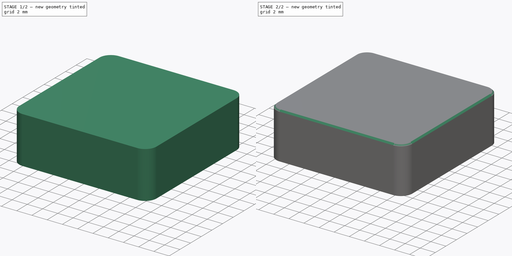
[diagram: build sequence overview — one tinted view per stage of 2, left to right]
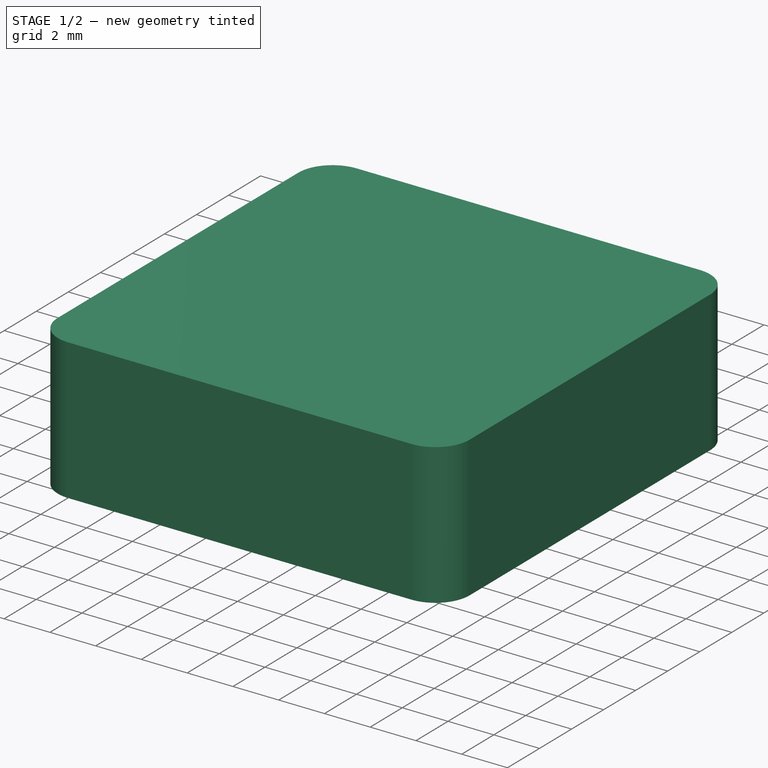
[diagram: stage 1 of 2 — iso view after this stage's code; geometry added in this stage tinted green]
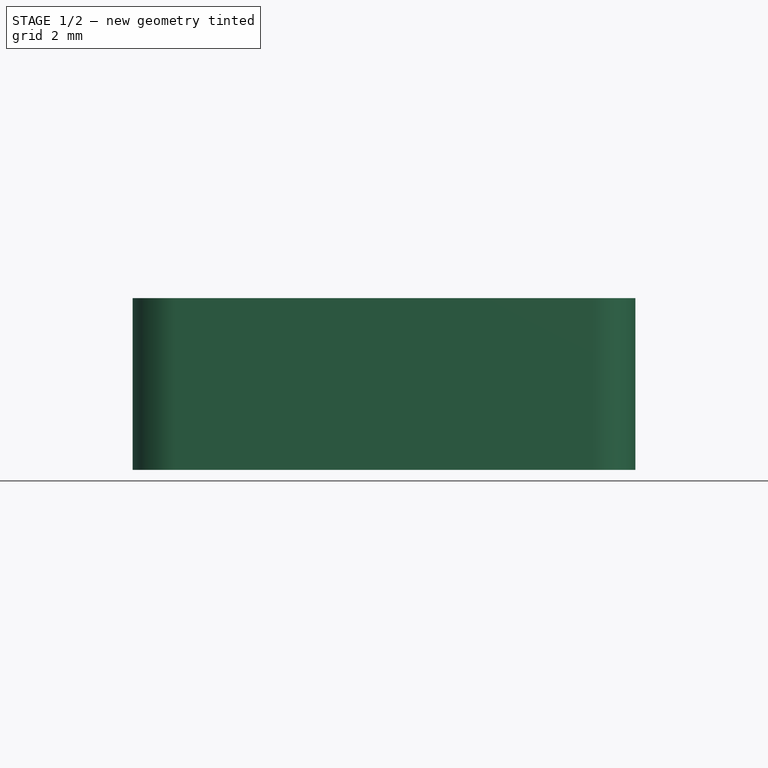
[diagram: stage 1 of 2 — front view after this stage's code; geometry added in this stage tinted green]
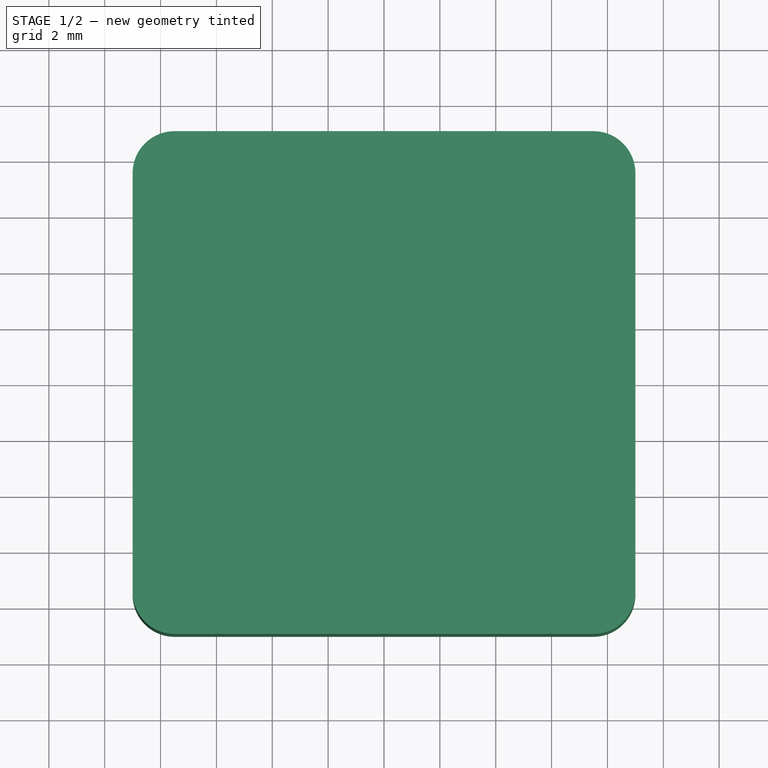
[diagram: stage 1 of 2 — top view after this stage's code; geometry added in this stage tinted green]
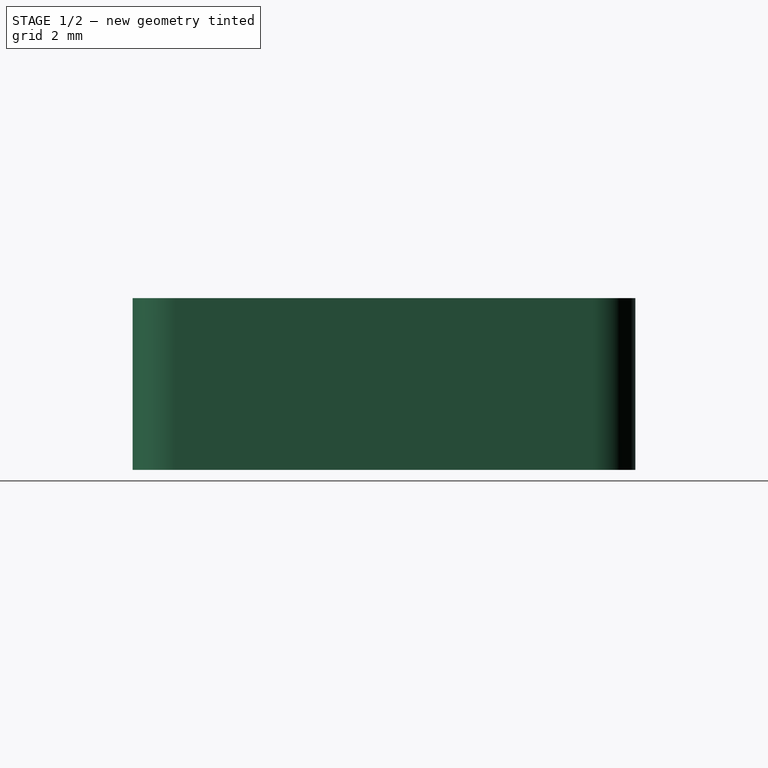
[diagram: stage 1 of 2 — right view after this stage's code; geometry added in this stage tinted green]
FCSTD DOCUMENT  (FreeCAD 1.0R39319 (Git))
Label: Atari XL Console Key
License: Creative Commons Attribution 4.0
LicenseURL: https://creativecommons.org/licenses/by/4.0/
objects: Sketcher::SketchObject×3, PartDesign::Pad×2, App::VarSet×1, PartDesign::Pocket×1, PartDesign::Chamfer×1, PartDesign::Body×1
note: 19 computed .brp shape members not serialized (recipe doc carries the construction recipe); baked Part::Feature solids carry a one-line shape summary decoded from their .brp

FEATURE [App::VarSet] VarSet  label="Data"
  Is1200XL = false
FEATURE [Sketcher::SketchObject] Sketch
  ArcFitTolerance = 1e-06
  AttachmentSupport = -> [XY_Plane]
  FullyConstrained = true
  MakeInternals = false
  MapMode = 5
  sketch-geometry (10):
    g0: LineSegment StartX=-9 StartY=7.5 StartZ=0 EndX=-9 EndY=-7.5 EndZ=0
    g1: LineSegment StartX=-7.5 StartY=-9 StartZ=0 EndX=7.5 EndY=-9 EndZ=0
    g2: LineSegment StartX=9 StartY=-7.5 StartZ=0 EndX=9 EndY=7.5 EndZ=0
    g3: LineSegment StartX=7.5 StartY=9 StartZ=0 EndX=-7.5 EndY=9 EndZ=0
    g4: ArcOfCircle CenterX=-7.5 CenterY=7.5 CenterZ=0 NormalX=0 NormalY=0 NormalZ=1 AngleXU=0 Radius=1.5 StartAngle=1.5708 EndAngle=3.14159
    g5: ArcOfCircle CenterX=-7.5 CenterY=-7.5 CenterZ=0 NormalX=0 NormalY=0 NormalZ=1 AngleXU=0 Radius=1.5 StartAngle=3.14159 EndAngle=4.71239
    g6: ArcOfCircle CenterX=7.5 CenterY=-7.5 CenterZ=0 NormalX=0 NormalY=0 NormalZ=1 AngleXU=0 Radius=1.5 StartAngle=4.71239 EndAngle=6.28319
    g7: ArcOfCircle CenterX=7.5 CenterY=7.5 CenterZ=0 NormalX=0 NormalY=0 NormalZ=1 AngleXU=0 Radius=1.5 StartAngle=0 EndAngle=1.5708
    g8: GeomPoint [constr] X=-9 Y=9 Z=0
    g9: GeomPoint [constr] X=9 Y=-9 Z=0
  constraints (23):
    c: Tangent(g0,g4) = -1.5708
    c: Tangent(g0,g5) = -1.5708
    c: Tangent(g1,g5) = -1.5708
    c: Tangent(g1,g6) = -1.5708
    c: Tangent(g2,g6) = -1.5708
    c: Tangent(g2,g7) = -1.5708
    c: Tangent(g3,g7) = -1.5708
    c: Tangent(g3,g4) = -1.5708
    c: Vertical(g0)
    c: Vertical(g2)
    c: Horizontal(g1)
    c: Horizontal(g3)
    c: Equal(g4,g5)
    c: Equal(g5,g6)
    c: Equal(g6,g7)
    c: PointOnObject(g8,g0)
    c: PointOnObject(g8,g3)
    c: PointOnObject(g9,g1)
    c: PointOnObject(g9,g2)
    c: Distance(g0,g2) = 18
    c: Distance(g1,g3) = 18
    c: Radius(g5) = 1.5
    c: Symmetric(g8,g9,g-1)
FEATURE [PartDesign::Pad] Pad  label="Main shape"
  Direction = (0,0,1)
  Length = 6.15
  Length2 = 10
  Profile = -> Sketch
  ReferenceAxis = -> Sketch [N_Axis]
  Suppressed = false
  Type = 0
FEATURE [Sketcher::SketchObject] Sketch001
  ArcFitTolerance = 1e-06
  AttachmentSupport = -> [Pad]
  ExternalGeometry = -> [Pad]
  FullyConstrained = true
  MakeInternals = false
  MapMode = 5
  Placement = pos=(0,0,0) rot=(1,0,0;3.14159rad)
  sketch-geometry (10):
    g0: LineSegment StartX=-7.8 StartY=6.3 StartZ=0 EndX=-7.8 EndY=-6.3 EndZ=0
    g1: LineSegment StartX=-6.3 StartY=-7.8 StartZ=0 EndX=6.3 EndY=-7.8 EndZ=0
    g2: LineSegment StartX=7.8 StartY=-6.3 StartZ=0 EndX=7.8 EndY=6.3 EndZ=0
    g3: LineSegment StartX=6.3 StartY=7.8 StartZ=0 EndX=-6.3 EndY=7.8 EndZ=0
    g4: ArcOfCircle CenterX=-6.3 CenterY=6.3 CenterZ=0 NormalX=0 NormalY=0 NormalZ=1 AngleXU=0 Radius=1.5 StartAngle=1.5708 EndAngle=3.14159
    g5: ArcOfCircle CenterX=-6.3 CenterY=-6.3 CenterZ=0 NormalX=0 NormalY=0 NormalZ=1 AngleXU=0 Radius=1.5 StartAngle=3.14159 EndAngle=4.71239
    g6: ArcOfCircle CenterX=6.3 CenterY=-6.3 CenterZ=0 NormalX=0 NormalY=0 NormalZ=1 AngleXU=0 Radius=1.5 StartAngle=4.71239 EndAngle=6.28319
    g7: ArcOfCircle CenterX=6.3 CenterY=6.3 CenterZ=0 NormalX=0 NormalY=0 NormalZ=1 AngleXU=0 Radius=1.5 StartAngle=-6.75e-14 EndAngle=1.5708
    g8: GeomPoint [constr] X=-7.8 Y=7.8 Z=0
    g9: GeomPoint [constr] X=7.8 Y=-7.8 Z=0
  constraints (24):
    c: Tangent(g0,g4) = -1.5708
    c: Tangent(g0,g5) = -1.5708
    c: Tangent(g1,g5) = -1.5708
    c: Tangent(g1,g6) = -1.5708
    c: Tangent(g2,g6) = -1.5708
    c: Tangent(g2,g7) = -1.5708
    c: Tangent(g3,g7) = -1.5708
    c: Tangent(g3,g4) = -1.5708
    c: Vertical(g0)
    c: Vertical(g2)
    c: Horizontal(g1)
    c: Horizontal(g3)
    c: Equal(g4,g5)
    c: Equal(g5,g6)
    c: Equal(g6,g7)
    c: PointOnObject(g8,g0)
    c: PointOnObject(g8,g3)
    c: PointOnObject(g9,g1)
    c: PointOnObject(g9,g2)
    c: DistanceX(g-3,g8) = 1.2
    c: DistanceY(g8,g-3) = 1.2
    c: DistanceX(g9,g-4) = 1.2
    c: DistanceY(g-4,g9) = 1.2
    c: Radius(g7) = 1.5
FEATURE [PartDesign::Pocket] Pocket
  BaseFeature = -> Pad
  Direction = (0,0,1)
  Length = 3
  Length2 = 5
  Profile = -> Sketch001
  ReferenceAxis = -> Sketch001 [N_Axis]
  Suppressed = false
  Type = 0
  expr: Length = <<Data>>.Is1200XL == True ? 5 mm : 3 mm
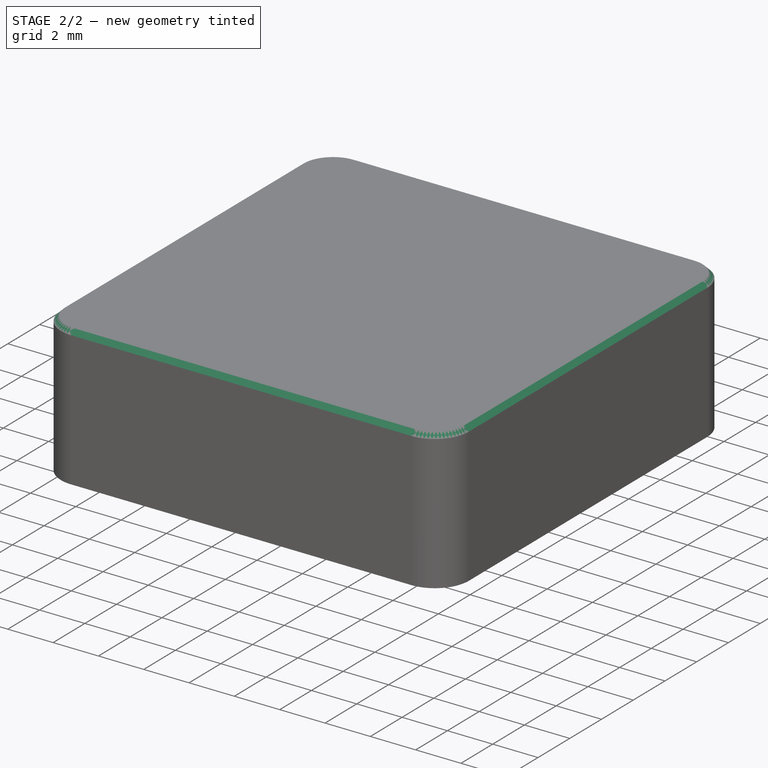
[diagram: stage 2 of 2 — iso view after this stage's code; geometry added in this stage tinted green]
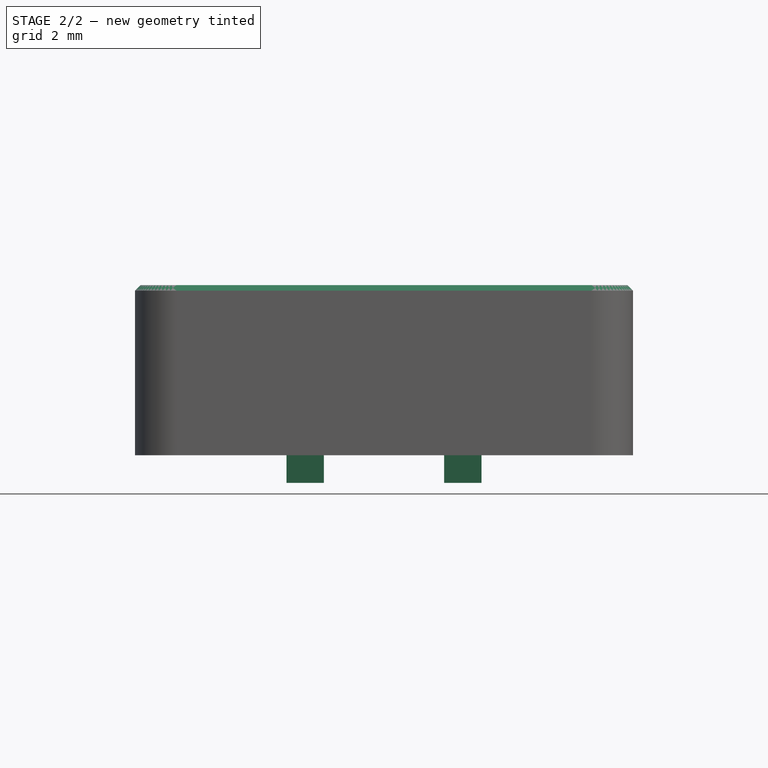
[diagram: stage 2 of 2 — front view after this stage's code; geometry added in this stage tinted green]
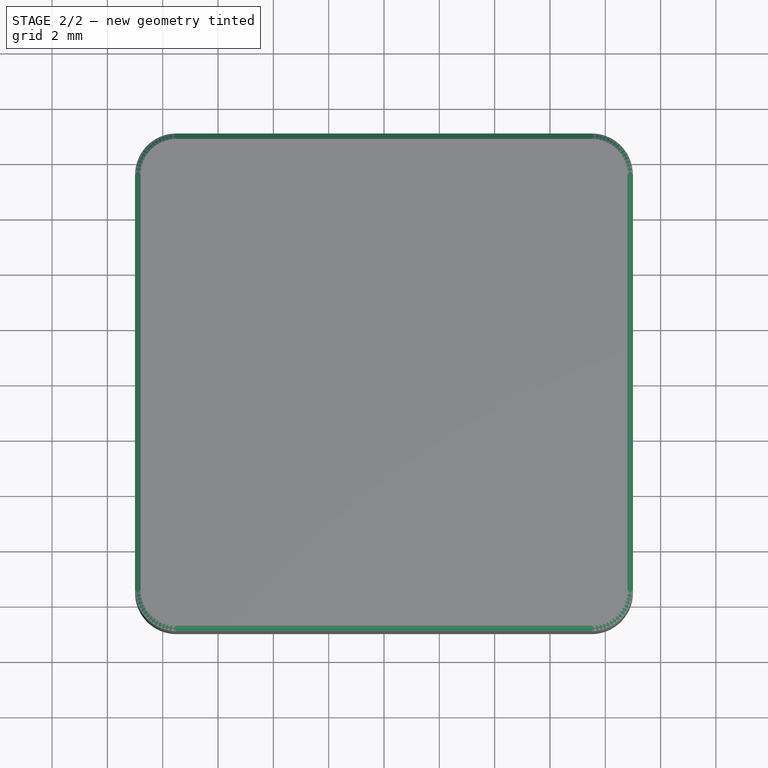
[diagram: stage 2 of 2 — top view after this stage's code; geometry added in this stage tinted green]
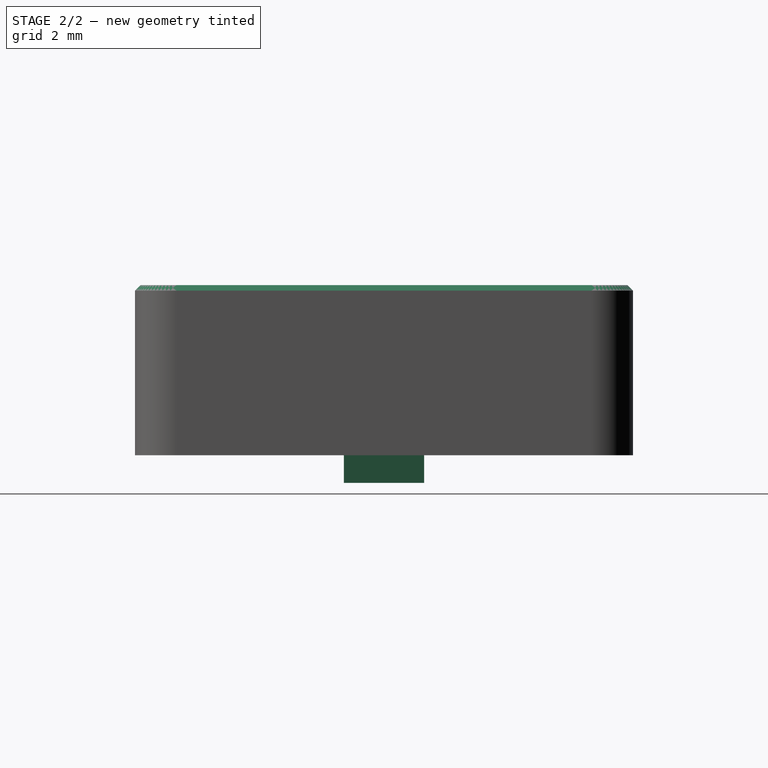
[diagram: stage 2 of 2 — right view after this stage's code; geometry added in this stage tinted green]
FEATURE [Sketcher::SketchObject] Sketch002
  ArcFitTolerance = 1e-06
  AttachmentSupport = -> [Pocket]
  FullyConstrained = true
  MakeInternals = false
  MapMode = 5
  Placement = pos=(0,0,3) rot=(1,0,0;3.14159rad)
  sketch-geometry (26):
    g0: LineSegment StartX=-3.425 StartY=-1.45 StartZ=0 EndX=-2.275 EndY=-1.45 EndZ=0
    g1: LineSegment StartX=-2.275 StartY=1.45 StartZ=0 EndX=-3.425 EndY=1.45 EndZ=0
    g2: GeomPoint [constr] X=-2.85 Y=0 Z=0
    g3: LineSegment StartX=3.425 StartY=1.45 StartZ=0 EndX=2.275 EndY=1.45 EndZ=0
    g4: LineSegment StartX=2.275 StartY=-1.45 StartZ=0 EndX=3.425 EndY=-1.45 EndZ=0
    g5: GeomPoint [constr] X=2.85 Y=-8.7e-15 Z=0
    g6: LineSegment StartX=-3.425 StartY=1.45 StartZ=0 EndX=-3.425 EndY=0.2 EndZ=0
    g7: LineSegment StartX=-3.425 StartY=0.2 StartZ=0 EndX=-3.525 EndY=0.2 EndZ=0
    g8: LineSegment StartX=-3.525 StartY=0.2 StartZ=0 EndX=-3.525 EndY=-0.2 EndZ=0
    g9: LineSegment StartX=-3.525 StartY=-0.2 StartZ=0 EndX=-3.425 EndY=-0.2 EndZ=0
    g10: LineSegment StartX=-3.425 StartY=-0.2 StartZ=0 EndX=-3.425 EndY=-1.45 EndZ=0
    g11: LineSegment StartX=-2.275 StartY=0.2 StartZ=0 EndX=-2.275 EndY=1.45 EndZ=0
    g12: LineSegment StartX=-2.175 StartY=0.2 StartZ=0 EndX=-2.275 EndY=0.2 EndZ=0
    g13: LineSegment StartX=-2.175 StartY=-0.2 StartZ=0 EndX=-2.175 EndY=0.2 EndZ=0
    g14: LineSegment StartX=-2.275 StartY=-1.45 StartZ=0 EndX=-2.275 EndY=-0.2 EndZ=0
    g15: LineSegment StartX=-2.275 StartY=-0.2 StartZ=0 EndX=-2.175 EndY=-0.2 EndZ=0
    g16: LineSegment StartX=2.275 StartY=1.45 StartZ=0 EndX=2.275 EndY=0.2 EndZ=0
    g17: LineSegment StartX=2.275 StartY=0.2 StartZ=0 EndX=2.175 EndY=0.2 EndZ=0
    g18: LineSegment StartX=2.175 StartY=0.2 StartZ=0 EndX=2.175 EndY=-0.2 EndZ=0
    g19: LineSegment StartX=2.175 StartY=-0.2 StartZ=0 EndX=2.275 EndY=-0.2 EndZ=0
    g20: LineSegment StartX=2.275 StartY=-0.2 StartZ=0 EndX=2.275 EndY=-1.45 EndZ=0
    g21: LineSegment StartX=3.425 StartY=0.2 StartZ=0 EndX=3.425 EndY=1.45 EndZ=0
    g22: LineSegment StartX=3.525 StartY=0.2 StartZ=0 EndX=3.425 EndY=0.2 EndZ=0
    g23: LineSegment StartX=3.525 StartY=-0.2 StartZ=0 EndX=3.525 EndY=0.2 EndZ=0
    g24: LineSegment StartX=3.425 StartY=-1.45 StartZ=0 EndX=3.425 EndY=-0.2 EndZ=0
    g25: LineSegment StartX=3.425 StartY=-0.2 StartZ=0 EndX=3.525 EndY=-0.2 EndZ=0
  constraints (72):
    c: Coincident(g0,g14)
    c: Coincident(g11,g1)
    c: Coincident(g1,g6)
    c: Coincident(g10,g0)
    c: Horizontal(g0)
    c: Horizontal(g1)
    c: Symmetric(g1,g0,g2)
    c: Distance(g14,g10) = 1.15
    c: Distance(g0,g1) = 2.9
    c: PointOnObject(g2,g-1)
    c: Coincident(g21,g3)
    c: Coincident(g3,g16)
    c: Coincident(g20,g4)
    c: Coincident(g4,g24)
    c: Horizontal(g3)
    c: Horizontal(g4)
    c: Symmetric(g16,g24,g5)
    c: Horizontal(g11,g3)
    c: Equal(g1,g3)
    c: Symmetric(g2,g5,g-1)
    c: DistanceX(g2,g5) = 5.7
    c: Coincident(g6,g7)
    c: Vertical(g6)
    c: Coincident(g7,g8)
    c: Coincident(g8,g9)
    c: Vertical(g8)
    c: Coincident(g9,g10)
    c: Vertical(g10)
    c: Coincident(g12,g11)
    c: Vertical(g11)
    c: Coincident(g13,g12)
    c: Coincident(g15,g13)
    c: Vertical(g13)
    c: Coincident(g14,g15)
    c: Vertical(g14)
    c: Coincident(g16,g17)
    c: Vertical(g16)
    c: Coincident(g17,g18)
    c: Coincident(g18,g19)
    c: Vertical(g18)
    c: Coincident(g19,g20)
    c: Vertical(g20)
    c: Coincident(g22,g21)
    c: Vertical(g21)
    c: Coincident(g23,g22)
    c: Coincident(g25,g23)
    c: Vertical(g23)
    c: Coincident(g24,g25)
    c: Vertical(g24)
    c: Horizontal(g9)
    c: Horizontal(g7)
    c: Horizontal(g15)
    c: Horizontal(g12)
    c: Horizontal(g17)
    c: Horizontal(g19)
    c: Horizontal(g22)
    c: Horizontal(g25)
    c: Horizontal(g6,g11)
    c: Horizontal(g9,g14)
    c: Horizontal(g16,g21)
    c: Horizontal(g19,g24)
    c: Horizontal(g9,g19)
    c: Horizontal(g6,g16)
    c: Equal(g7,g12)
    c: Equal(g17,g22)
    c: Equal(g7,g17)
    c: Vertical(g6,g9)
    c: Vertical(g16,g19)
    c: Vertical(g21,g24)
    c: Symmetric(g6,g14,g2)
    c: DistanceY(g23,g23) = 0.4
    c: DistanceX(g22,g22) = 0.1
FEATURE [PartDesign::Pad] Pad001
  BaseFeature = -> Pocket
  Direction = (0,0,-1)
  Length = 4
  Length2 = 10
  Profile = -> Sketch002
  ReferenceAxis = -> Sketch002 [N_Axis]
  Suppressed = false
  Type = 0
FEATURE [PartDesign::Chamfer] Chamfer
  Angle = 45
  Base = -> Pad001 [Edge24]
  BaseFeature = -> Pad001
  ChamferType = 0
  FlipDirection = false
  Size = 0.2
  Size2 = 1
  SupportTransform = false
  Suppressed = false
  UseAllEdges = false
FEATURE [PartDesign::Body] Body  label="Console Key"
  AllowCompound = false
  Group = -> [Sketch,Pad,Sketch001,Pocket,Sketch002,Pad001,Chamfer]
  Origin = -> Origin
  Tip = -> Chamfer
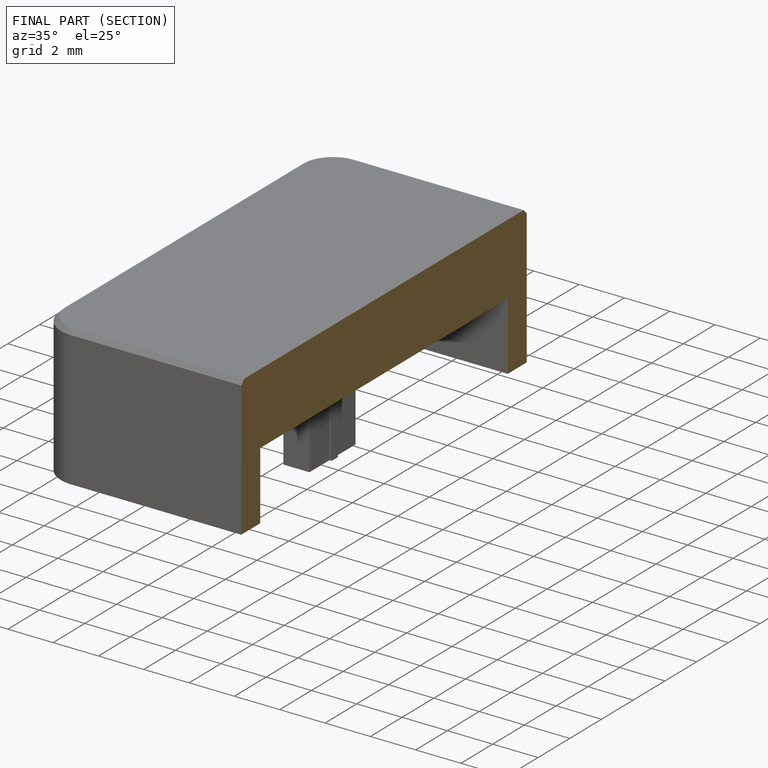
[diagram: finished part — half-section view (interior)]
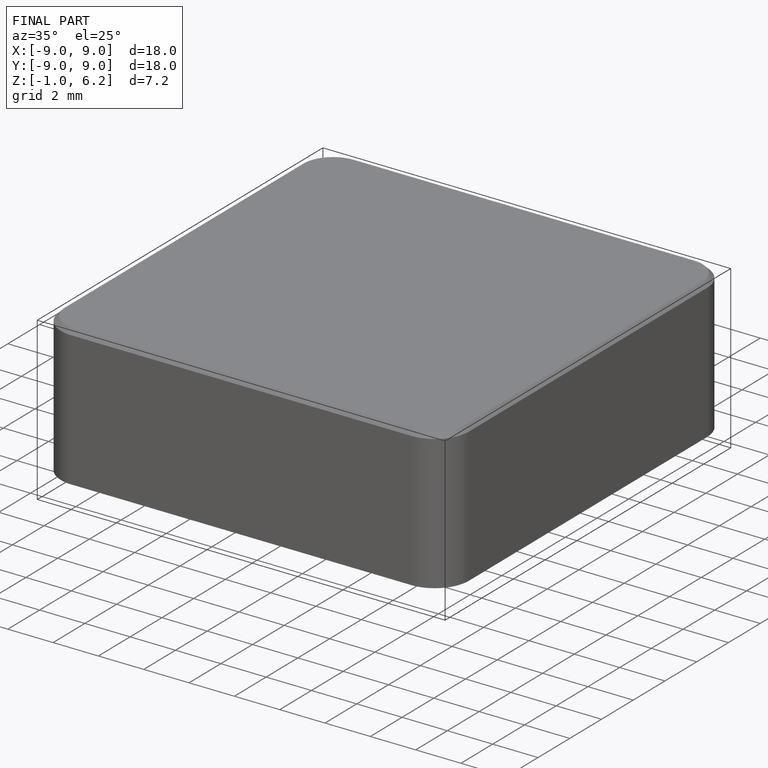
[diagram: finished part — iso view with bounding-box wireframe]
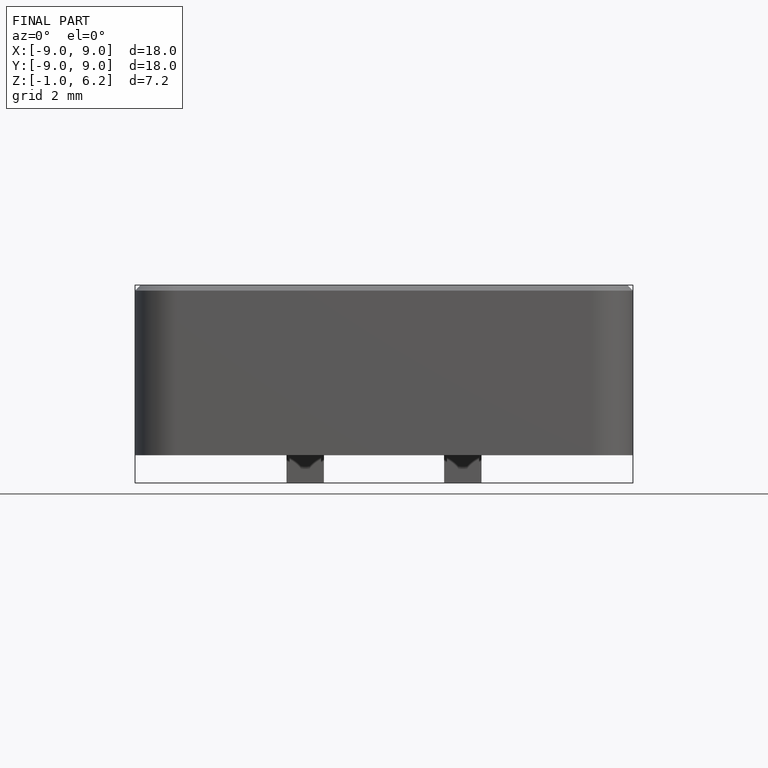
[diagram: finished part — front view with bounding-box wireframe]
